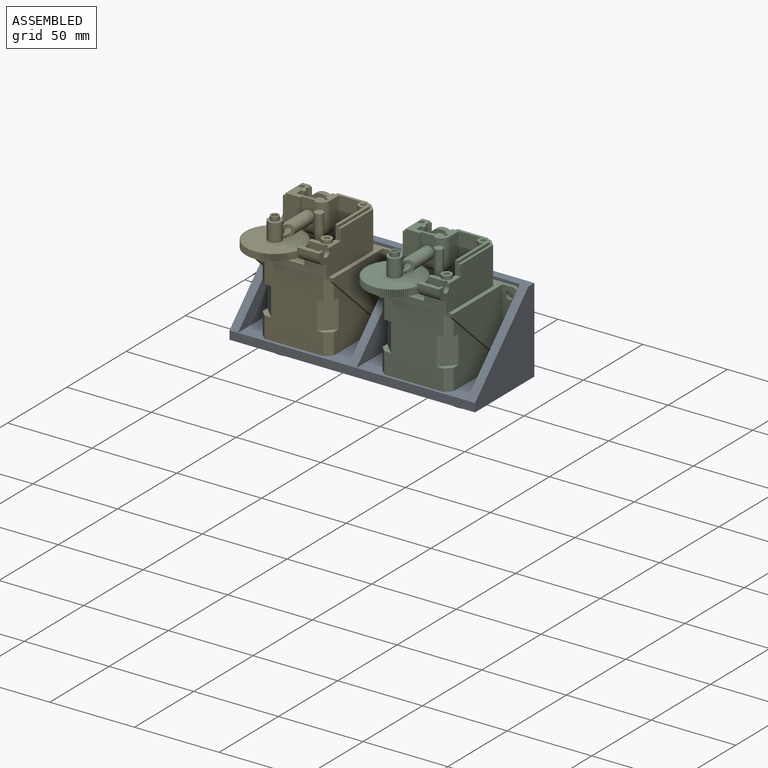
[diagram: assembled view]
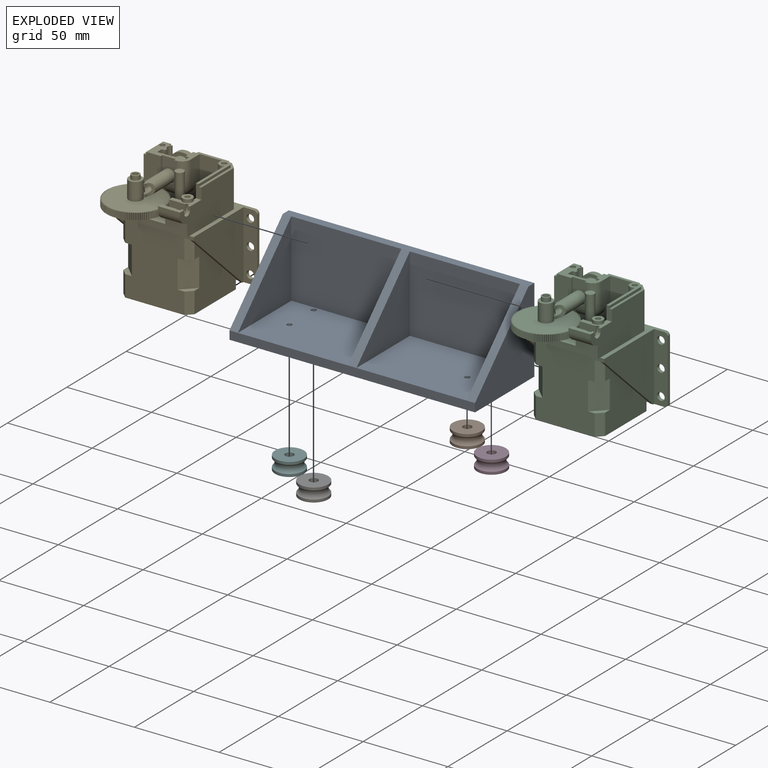
[diagram: exploded view]
GUIDED TOUR — MATED ASSEMBLY WITH SUBASSEMBLIES (Onshape document d7634deb3688b2f1b985ae3a, AutoMate assembly d7634deb3688b2f1b985ae3a_b9d960c2a4b070388d942541_c67b8e5b1b99cf756e7b9374_default)

This assembly has 17 component occurrences arranged in 7 top-level units: 5 individual components plus 2 subassemblies (S0, S1). The tour has two levels: first the top level, where each subassembly is treated as one rigid unit; then each subassembly is toured internally in its own section (nesting deeper than one subassembly level is flattened into its subassembly's section).

Components are labeled P0..P16 across the whole record; subassembly units are labeled S0..S1. A mate is a constraint between two units; its type names the relative motion it leaves free:
  CYLINDRICAL — leaves both rotation about and translation along the listed axis free,
  PARALLEL — keeps the two listed directions parallel,
  PLANAR — leaves sliding in the plane through the listed point (normal = the listed direction) and rotation about that normal free.
Axis/direction vectors are unit vectors and 'through' points are millimeter coordinates, both in the assembly's world frame.

TOP-LEVEL MATES (between units; each subassembly's internal mates are listed in its own section)
  1. CYLINDRICAL "Cylindrical 1": P1 <-> P0, axis (0.000, 0.000, 1.000) through (79.17, -160.97, 48.80) mm
  2. CYLINDRICAL "Cylindrical 4": P16 <-> P0, axis (0.000, 0.000, 1.000) through (-25.83, -140.51, 48.80) mm
  3. PLANAR "Planar 3": P1 <-> P0, direction (0.000, 0.000, 1.000) through (79.17, -160.97, 48.80) mm
  4. CYLINDRICAL "Cylindrical 3": P11 <-> P0, axis (0.000, 0.000, 1.000) through (-25.83, -160.97, 43.92) mm
  5. CYLINDRICAL "Cylindrical 2": P3 <-> P0, axis (0.000, 0.000, 1.000) through (79.17, -140.51, 48.80) mm
  6. PLANAR "Planar 2": P11 <-> P0, direction (0.000, 0.000, 1.000) through (-25.83, -160.97, 48.80) mm
  7. PLANAR "Planar 4": P0 <-> P3, direction (0.000, 0.000, -1.000) through (26.67, -158.09, 48.80) mm
  8. PLANAR "Planar 1": P16 <-> P0, direction (0.000, 0.000, 1.000) through (-25.83, -140.51, 48.80) mm

TOP-LEVEL ASSEMBLY ORDER
  1. P0 — the base component [order heuristic]
  2. P1 — core [order heuristic]
  3. P3 — core [order heuristic]
  4. P11 — core [order heuristic]
  5. P16 — core [order heuristic]
  6. S1 [order verified]
  7. S0 [order verified]
Order-tag legend:
  [order verified] — this step's position reverses a verified removal order: the component was checked to insert without passing through the ones already placed.
  [order heuristic] — the first 5 components form the assembly's core: parts whose collision-free extraction could not be verified, listed in mate-graph order.

Of the 17 component occurrences, 17 carry the full construction recipe — the FeatureScript program that regenerates the part's solid from scratch; the rest are supplied as boundary geometry only. Each toured unit is shown spotlighted twice — assembled, then exploded with a leader line back to its socket (green = recipe-attached component, orange = geometry-only, blue = subassembly unit; the rest desaturated gray).
NOTE — this tour is split across 4 documents so each fits a 32k-token context. This is document 1: the component sections continue in the remaining 3 documents, each repeating the header above.
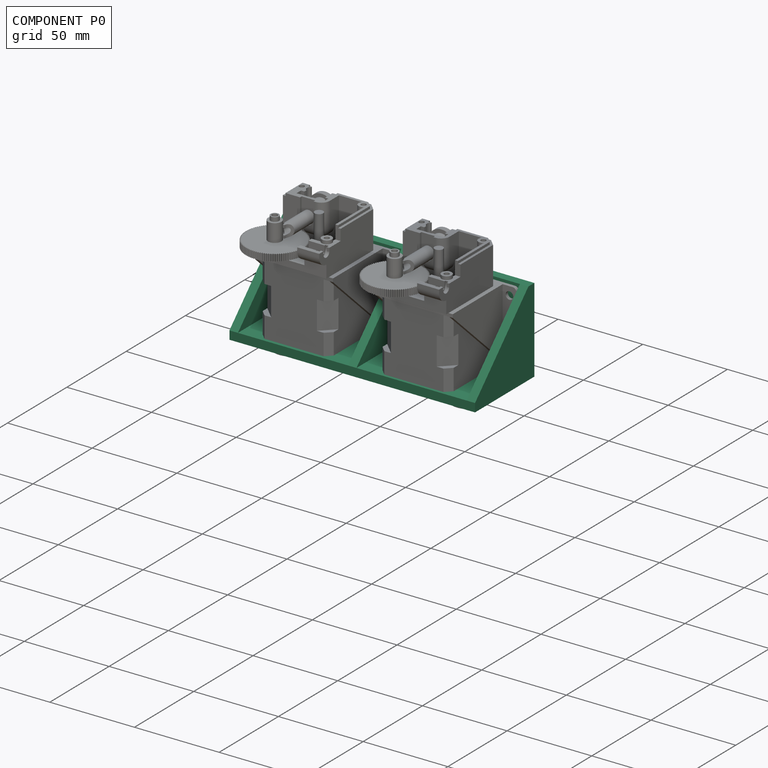
[diagram: component P0 — assembled]
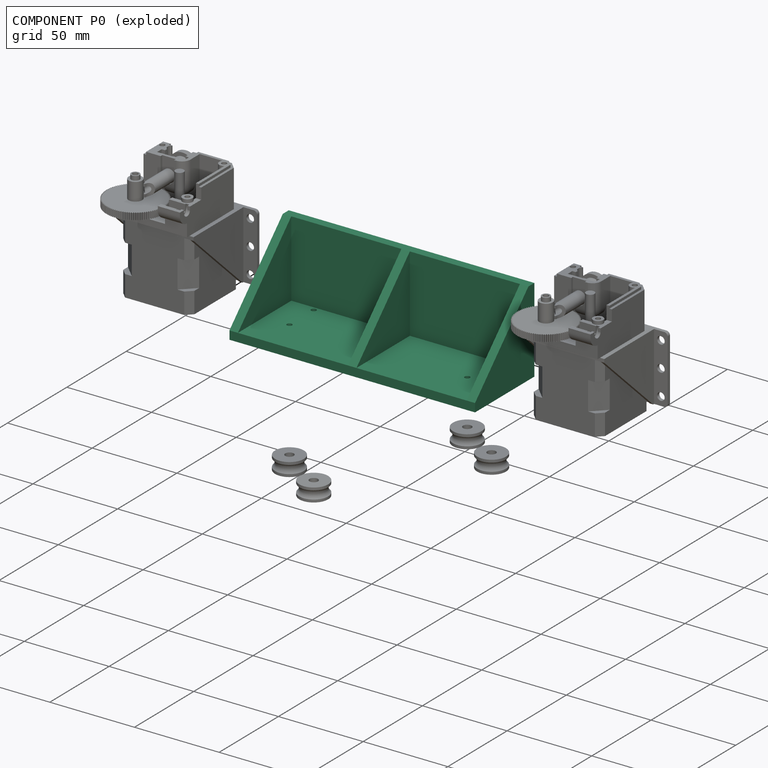
[diagram: component P0 — exploded]
COMPONENT P0 — recipe-attached (CADFS 00519379, mesh-verified: the recipe's output STEP matches this component's geometry to below the mesh-comparison resolution (tessellation chordal tolerance ~0.249 mm)).
Held by: CYLINDRICAL mate "Cylindrical 1" to P1; CYLINDRICAL mate "Cylindrical 4" to P16; PLANAR mate "Planar 3" to P1; CYLINDRICAL mate "Cylindrical 3" to P11; CYLINDRICAL mate "Cylindrical 2" to P3; PLANAR mate "Planar 2" to P11; PLANAR mate "Planar 4" to P3; PLANAR mate "Planar 1" to P16.
Construction recipe (FeatureScript — the CAD program that rebuilds this solid; sketch coordinates are in the units given by the * unit suffixes, e.g. mm):

FeatureScript 1511;
import(path : "onshape/std/geometry.fs", version : "1511.0");
import(path : "onshape/std/common.fs", version : "1511.0");
const mm = millimeter;
const VERTEX = EntityType.VERTEX;
const EDGE = EntityType.EDGE;
const FACE = EntityType.FACE;
const BODY = EntityType.BODY;
function v(x, y){return vector(x, y);}
function OD(order){return orderDisambiguation(order);}
function OSD(set){return originalSetDisambiguation(set);}
function TD(topology){return topologyDisambiguation(topology);}
function TDD(query){return trueDependencyDisambiguation(query);}
function sQuery(a, b, c) {return sketchEntityQuery(a, b, c);}

annotation { "Feature Type Name" : "Feature", "Feature Type Description" : "" }
export const myFeature = defineFeature(function(context is Context, id is Id, definition is map)
    precondition{}
    {
        {
            var Q0;
            Q0=qCreatedBy(makeId("Top.planeOp"),FACE);
            var sketch = newSketch(context, id + "F0", { "sketchPlane" : qUnion([Q0])});
            skLineSegment(sketch, "E0.bottom", {"start": v(0, 0) * mm, "end": v(145, 0) * mm});
            skLineSegment(sketch, "E0.top", {"start": v(0, 50) * mm, "end": v(145, 50) * mm});
            skLineSegment(sketch, "E0.left", {"start": v(0, 0) * mm, "end": v(0, 50) * mm});
            skLineSegment(sketch, "E0.right", {"start": v(145, 0) * mm, "end": v(145, 50) * mm});
            skSolve(sketch);
        }
        {
            var Q0;
            Q0=makeQuery(id+"F0.imprint","IMPRINT",FACE,{"disambiguationData":[TD([[makeQuery(id+"F0.imprint","IMPRINT",EDGE,{"derivedFrom":sQuery(id+"F0.wireOp",EDGE,"E0.bottom")}),1.0]])]});
            extrude(context, id + "F1", {"entities" : qUnion([Q0]), "depth" : 5 * mm, "offsetDistance" : 25 * mm});
        }
        {
            var Q0;
            Q0=makeQuery(id+"F1.opExtrude","CAP_FACE",FACE,{"disambiguationData":[OSD([sQuery(id+"F0.wireOp",EDGE,"E0.bottom"),sQuery(id+"F0.wireOp",EDGE,"E0.top"),sQuery(id+"F0.wireOp",EDGE,"E0.left"),sQuery(id+"F0.wireOp",EDGE,"E0.right")])],"isStart":false});
            var sketch = newSketch(context, id + "F2", { "sketchPlane" : qUnion([Q0])});
            skCircle(sketch, "E1", {"center": v(20, 42.5) * mm, "radius": 2.5 * mm});
            skCircle(sketch, "E2", {"center": v(20, 22.04) * mm, "radius": 2.5 * mm});
            skCircle(sketch, "E3", {"center": v(125, 42.5) * mm, "radius": 2.5 * mm});
            skCircle(sketch, "E4", {"center": v(125, 22.04) * mm, "radius": 2.5 * mm});
            skCircle(sketch, "E5", {"center": v(20, 42.5) * mm, "radius": 1.5 * mm});
            skCircle(sketch, "E6", {"center": v(20, 22.04) * mm, "radius": 1.5 * mm});
            skCircle(sketch, "E7", {"center": v(125, 42.5) * mm, "radius": 1.5 * mm});
            skCircle(sketch, "E8", {"center": v(125, 22.04) * mm, "radius": 1.5 * mm});
            skSolve(sketch);
        }
        {
            var Q0;
            Q0 = qSketchRegion(id + "F2", true);
            extrude(context, id + "F3", {"entities" : qUnion([Q0]), "operationType" : NewBodyOperationType.ADD, "depth" : 9.75 * mm, "offsetDistance" : 25 * mm});
        }
        {
            var Q0;
            {var subQ0=sQuery(id+"F0.wireOp",EDGE,"E0.left");var subQ1=sQuery(id+"F0.wireOp",EDGE,"E0.top");var subQ2=sQuery(id+"F0.wireOp",EDGE,"E0.right");var subQ3=sQuery(id+"F0.wireOp",EDGE,"E0.bottom");Q0=makeQuery(id+"F3.boolean.opBoolean","SPLIT",FACE,{"disambiguationData":[TD([makeQuery(id+"F1.opExtrude","SWEPT_FACE",FACE,{"disambiguationData":[OSD([subQ3])]})])],"derivedFrom":makeQuery(id+"F1.opExtrude","CAP_FACE",FACE,{"disambiguationData":[OSD([subQ3,subQ1,subQ0,subQ2])],"isStart":false})});}
            var sketch = newSketch(context, id + "F4", { "sketchPlane" : qUnion([Q0])});
            skCircle(sketch, "E9", {"center": v(20, 42.5) * mm, "radius": 1.5 * mm});
            skCircle(sketch, "E10", {"center": v(20, 22.04) * mm, "radius": 1.5 * mm});
            skCircle(sketch, "E11", {"center": v(125, 42.5) * mm, "radius": 1.5 * mm});
            skCircle(sketch, "E12", {"center": v(125, 22.04) * mm, "radius": 1.5 * mm});
            skSolve(sketch);
        }
        {
            var Q0;
            Q0 = qSketchRegion(id + "F4", true);
            extrude(context, id + "F5", {"entities" : qUnion([Q0]), "operationType" : NewBodyOperationType.REMOVE, "oppositeDirection" : true, "depth" : 25 * mm, "offsetDistance" : 25 * mm});
        }
        {
            var Q0;
            Q0=makeQuery(id+"F1.opExtrude","SWEPT_FACE",FACE,{"disambiguationData":[OSD([sQuery(id+"F0.wireOp",EDGE,"E0.right")])]});
            var sketch = newSketch(context, id + "F6", { "sketchPlane" : qUnion([Q0])});
            skLineSegment(sketch, "E13", {"start": v(50, 0) * mm, "end": v(50, -45) * mm});
            skLineSegment(sketch, "E14", {"start": v(50, -45) * mm, "end": v(45, -45) * mm});
            skLineSegment(sketch, "E15", {"start": v(45, -45) * mm, "end": v(45, 0) * mm});
            skLineSegment(sketch, "E16", {"start": v(45, 0) * mm, "end": v(50, 0) * mm});
            skSolve(sketch);
        }
        {
            var Q0;
            Q0=makeQuery(id+"F6.imprint","IMPRINT",FACE,{"disambiguationData":[TD([[makeQuery(id+"F6.imprint","IMPRINT",EDGE,{"derivedFrom":sQuery(id+"F6.wireOp",EDGE,"E13")}),-1.0]])]});
            var Q1;
            Q1=makeQuery(id+"F1.opExtrude","SWEPT_FACE",FACE,{"disambiguationData":[OSD([sQuery(id+"F0.wireOp",EDGE,"E0.left")])]});
            extrude(context, id + "F7", {"entities" : qUnion([Q0]), "operationType" : NewBodyOperationType.ADD, "endBound" : BoundingType.UP_TO_SURFACE, "oppositeDirection" : true, "depth" : 25 * mm, "endBoundEntityFace" : qUnion([Q1]), "offsetDistance" : 25 * mm});
        }
        {
            var Q0;
            {var subQ0=sQuery(id+"F0.wireOp",EDGE,"E0.left");Q0=makeQuery(id+"F7.boolean.opBoolean","MERGE",FACE,{"derivedFrom":[makeQuery(id+"F1.opExtrude","SWEPT_FACE",FACE,{"disambiguationData":[OSD([subQ0])]}),makeQuery(id+"F7.opExtrude","CAP_FACE",FACE,{"disambiguationData":[OSD([subQ0])],"isStart":false})]});}
            var sketch = newSketch(context, id + "F8", { "sketchPlane" : qUnion([Q0])});
            skLineSegment(sketch, "E17", {"start": v(-45, -45) * mm, "end": v(-45, 0) * mm});
            skLineSegment(sketch, "E18", {"start": v(-45, 0) * mm, "end": v(0, 0) * mm});
            skLineSegment(sketch, "E19", {"start": v(0, 0) * mm, "end": v(-45, -45) * mm});
            skSolve(sketch);
        }
        {
            var Q0;
            Q0=makeQuery(id+"F8.imprint","IMPRINT",FACE,{"disambiguationData":[TD([[makeQuery(id+"F8.imprint","IMPRINT",EDGE,{"derivedFrom":sQuery(id+"F8.wireOp",EDGE,"E17")}),-1.0]])]});
            extrude(context, id + "F9", {"entities" : qUnion([Q0]), "operationType" : NewBodyOperationType.ADD, "oppositeDirection" : true, "depth" : 5 * mm, "offsetDistance" : 25 * mm});
        }
        {
            var Q0;
            Q0 = qSketchRegion(id + "F8", true);
            extrude(context, id + "F10", {"entities" : qUnion([Q0]), "operationType" : NewBodyOperationType.ADD, "oppositeDirection" : true, "depth" : 75 * mm, "offsetDistance" : 25 * mm, "hasSecondDirection" : true, "secondDirectionOppositeDirection" : true, "secondDirectionDepth" : 70 * mm});
        }
        {
            var Q0;
            Q0 = qSketchRegion(id + "F8", true);
            extrude(context, id + "F11", {"entities" : qUnion([Q0]), "operationType" : NewBodyOperationType.ADD, "oppositeDirection" : true, "depth" : 145 * mm, "offsetDistance" : 25 * mm, "hasSecondDirection" : true, "secondDirectionOppositeDirection" : true, "secondDirectionDepth" : 140 * mm});
        }
        {
            var Q0;
            Q0=makeQuery(id+"F7.boolean.opBoolean","MERGE",FACE,{"derivedFrom":[makeQuery(id+"F1.opExtrude","SWEPT_FACE",FACE,{"disambiguationData":[OSD([sQuery(id+"F0.wireOp",EDGE,"E0.top")])]}),makeQuery(id+"F7.opExtrude","SWEPT_FACE",FACE,{"disambiguationData":[OSD([sQuery(id+"F6.wireOp",EDGE,"E13")])]})]});
            var sketch = newSketch(context, id + "F12", { "sketchPlane" : qUnion([Q0])});
            skCircle(sketch, "E20", {"center": v(-102.5, -5) * mm, "radius": 2.5 * mm});
            skCircle(sketch, "E21", {"center": v(-102.5, -5) * mm, "radius": 1.5 * mm});
            skCircle(sketch, "E22", {"center": v(-102.5, -25.46) * mm, "radius": 2.5 * mm});
            skCircle(sketch, "E23", {"center": v(-102.5, -25.46) * mm, "radius": 1.5 * mm});
            skCircle(sketch, "E24", {"center": v(-42.5, -5) * mm, "radius": 2.5 * mm});
            skCircle(sketch, "E25", {"center": v(-42.5, -5) * mm, "radius": 1.5 * mm});
            skCircle(sketch, "E26", {"center": v(-42.5, -25.46) * mm, "radius": 1.5 * mm});
            skCircle(sketch, "E27", {"center": v(-42.5, -25.46) * mm, "radius": 2.5 * mm});
            skSolve(sketch);
        }
        {
            var Q0;
            Q0 = qSketchRegion(id + "F12", true);
            extrude(context, id + "F13", {"entities" : qUnion([Q0]), "operationType" : NewBodyOperationType.ADD, "depth" : 5 * mm, "offsetDistance" : 25 * mm});
        }
    });
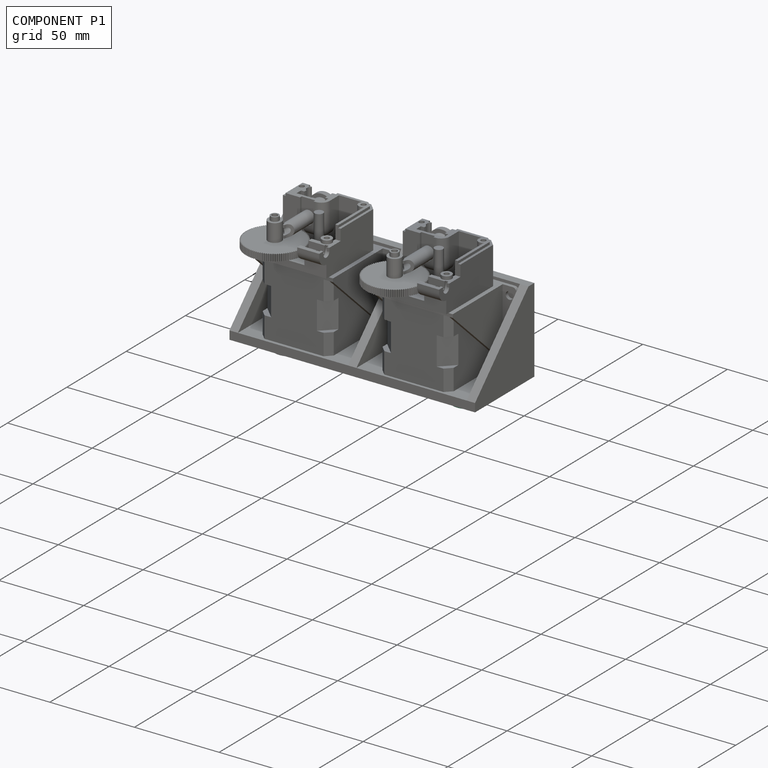
[diagram: component P1 — assembled]
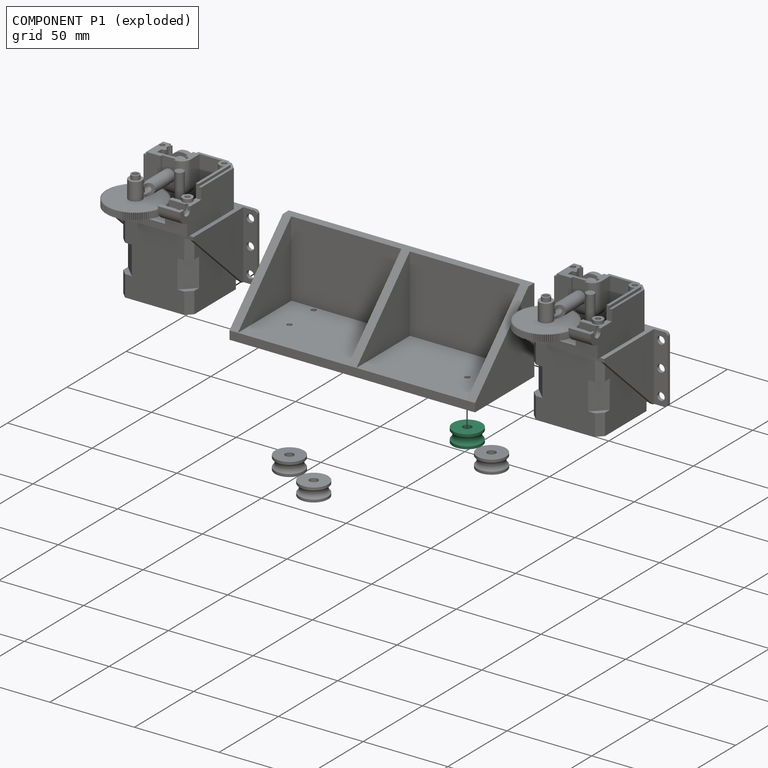
[diagram: component P1 — exploded]
COMPONENT P1 — recipe-attached (CADFS 00519377, mesh-verified: the recipe's output STEP matches this component's geometry to below the mesh-comparison resolution (tessellation chordal tolerance ~0.0389 mm)).
Held by: CYLINDRICAL mate "Cylindrical 1" to P0; PLANAR mate "Planar 3" to P0.
Construction recipe (FeatureScript — the CAD program that rebuilds this solid; sketch coordinates are in the units given by the * unit suffixes, e.g. mm):

FeatureScript 1511;
import(path : "onshape/std/geometry.fs", version : "1511.0");
import(path : "onshape/std/common.fs", version : "1511.0");
const mm = millimeter;
const VERTEX = EntityType.VERTEX;
const EDGE = EntityType.EDGE;
const FACE = EntityType.FACE;
const BODY = EntityType.BODY;
function v(x, y){return vector(x, y);}
function OD(order){return orderDisambiguation(order);}
function OSD(set){return originalSetDisambiguation(set);}
function TD(topology){return topologyDisambiguation(topology);}
function TDD(query){return trueDependencyDisambiguation(query);}
function sQuery(a, b, c) {return sketchEntityQuery(a, b, c);}

annotation { "Feature Type Name" : "Feature", "Feature Type Description" : "" }
export const myFeature = defineFeature(function(context is Context, id is Id, definition is map)
    precondition{}
    {
        {
            var Q0;
            Q0=qCreatedBy(makeId("Top.planeOp"),FACE);
            var sketch = newSketch(context, id + "F0", { "sketchPlane" : qUnion([Q0])});
            skLineSegment(sketch, "E0", {"start": v(0, 0) * mm, "end": v(0, 6) * mm});
            skLineSegment(sketch, "E1", {"start": v(0, 6) * mm, "end": v(9.75, 6) * mm});
            skLineSegment(sketch, "E2", {"start": v(9.75, 6) * mm, "end": v(9.75, 4.2) * mm});
            skLineSegment(sketch, "E3", {"start": v(9.75, 4.2) * mm, "end": v(8, 4.2) * mm});
            skLineSegment(sketch, "E4", {"start": v(8, 4.2) * mm, "end": v(8, 0) * mm});
            skArc(sketch, "E5", {"start": v(6.45, 0) * mm, "mid": v(4, 1.27) * mm, "end": v(1.55, 0) * mm});
            skLineSegment(sketch, "E6", {"start": v(0, 0) * mm, "end": v(1.55, 0) * mm});
            skLineSegment(sketch, "E7", {"start": v(8, 0) * mm, "end": v(6.45, 0) * mm});
            skSolve(sketch);
        }
        {
            var Q0;
            Q0=qCreatedBy(makeId("Top.planeOp"),FACE);
            var sketch = newSketch(context, id + "F1", { "sketchPlane" : qUnion([Q0])});
            skLineSegment(sketch, "E8", {"start": v(1.6, 8.5) * mm, "end": v(19.32, 8.5) * mm, "construction": true});
            skSolve(sketch);
        }
        {
            var Q0;
            Q0 = qSketchRegion(id + "F0", true);
            var Q1;
            Q1=sQuery(id+"F1.wireOp",EDGE,"E8");
            revolve(context, id + "F2", {"entities" : qUnion([Q0]), "axis" : qUnion([Q1]), "revolveType" : RevolveType.FULL});
        }
    });
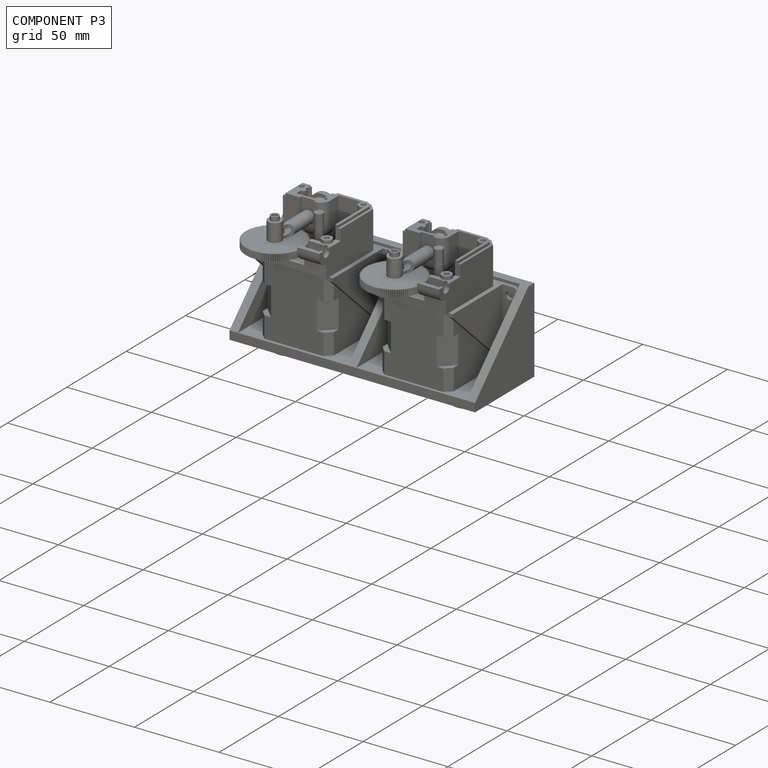
[diagram: component P3 — assembled]
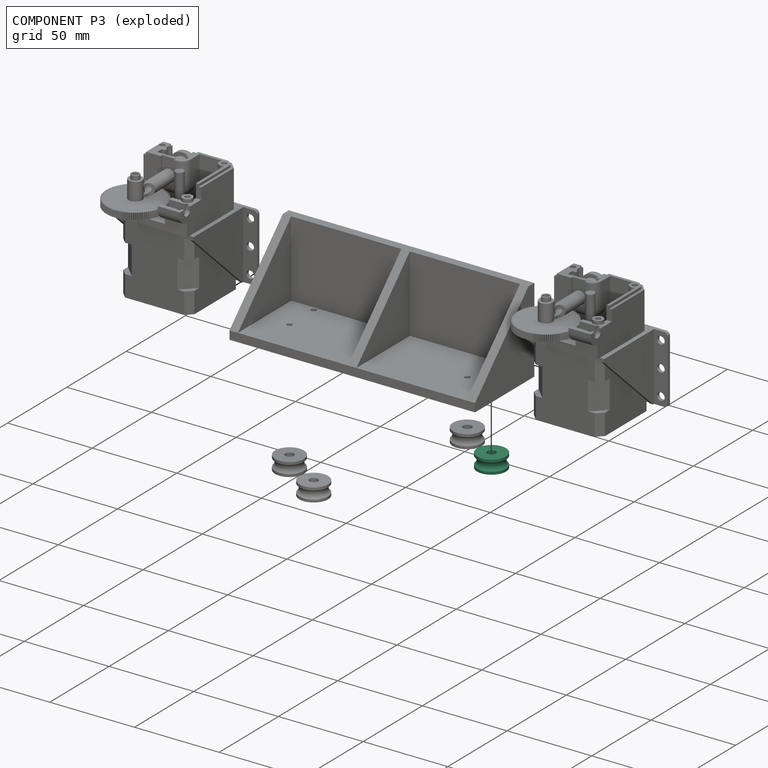
[diagram: component P3 — exploded]
COMPONENT P3 — same part as P1 (CADFS 00519377); its construction recipe is shown at P1.
Held by: CYLINDRICAL mate "Cylindrical 2" to P0; PLANAR mate "Planar 4" to P0.
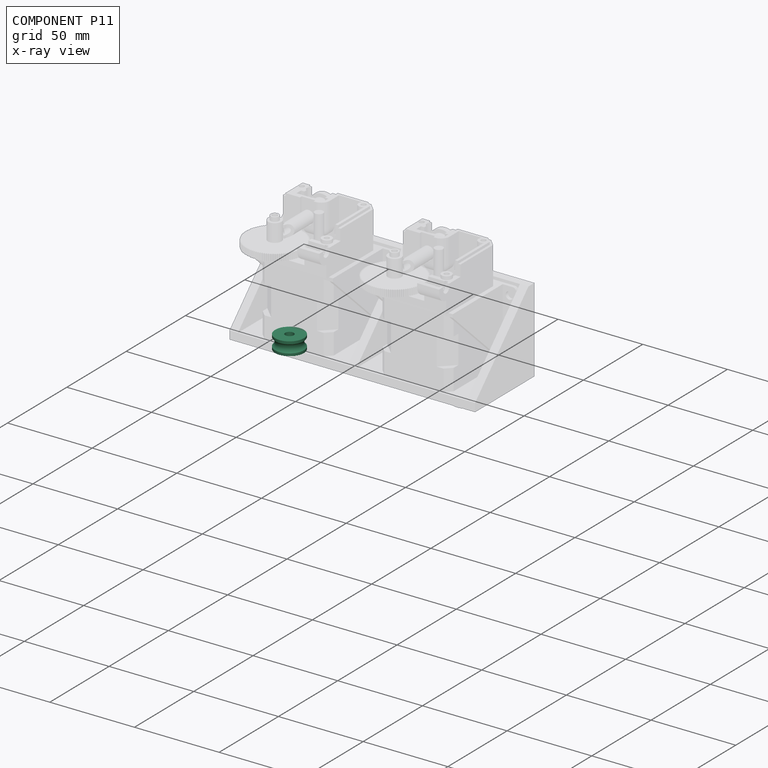
[diagram: component P11 — x-ray view]
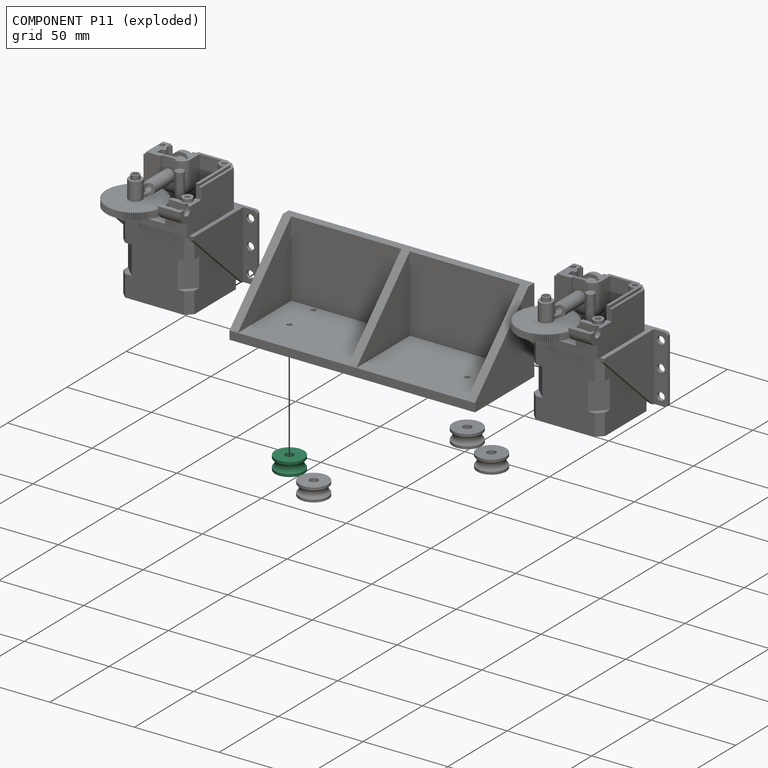
[diagram: component P11 — exploded]
COMPONENT P11 — same part as P1 (CADFS 00519377); its construction recipe is shown at P1.
Held by: CYLINDRICAL mate "Cylindrical 3" to P0; PLANAR mate "Planar 2" to P0.
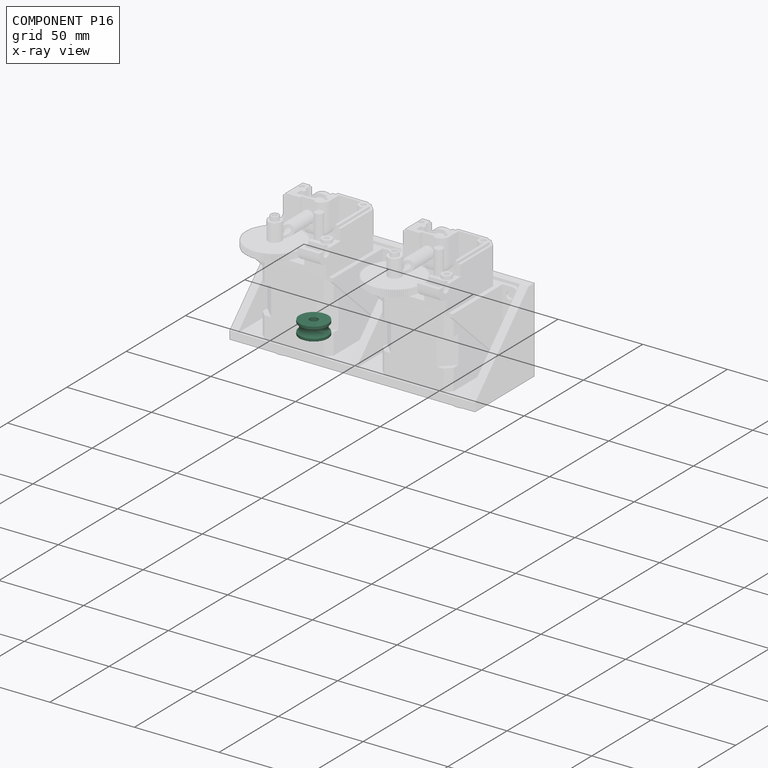
[diagram: component P16 — x-ray view]
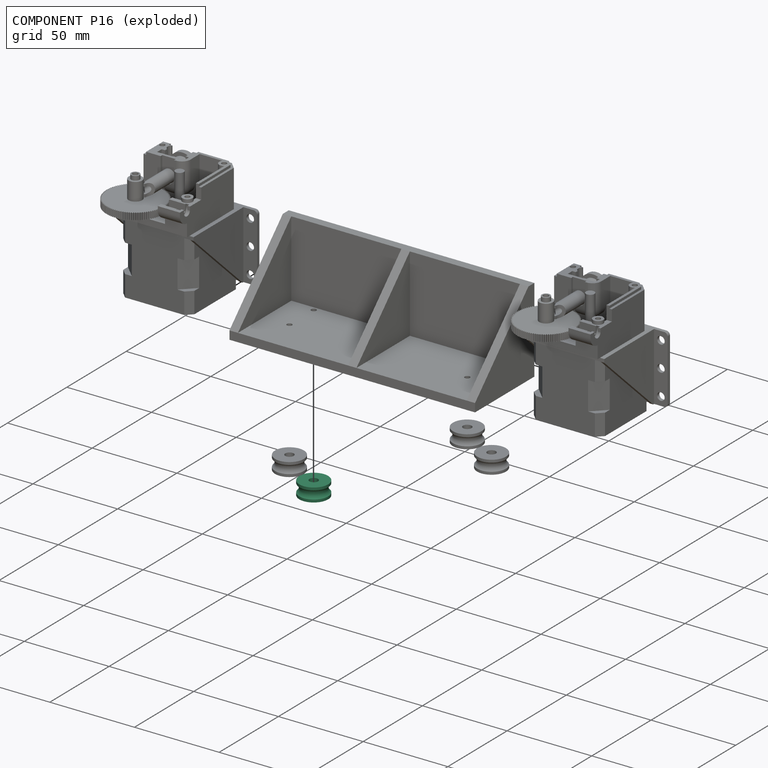
[diagram: component P16 — exploded]
COMPONENT P16 — same part as P1 (CADFS 00519377); its construction recipe is shown at P1.
Held by: CYLINDRICAL mate "Cylindrical 4" to P0; PLANAR mate "Planar 1" to P0.
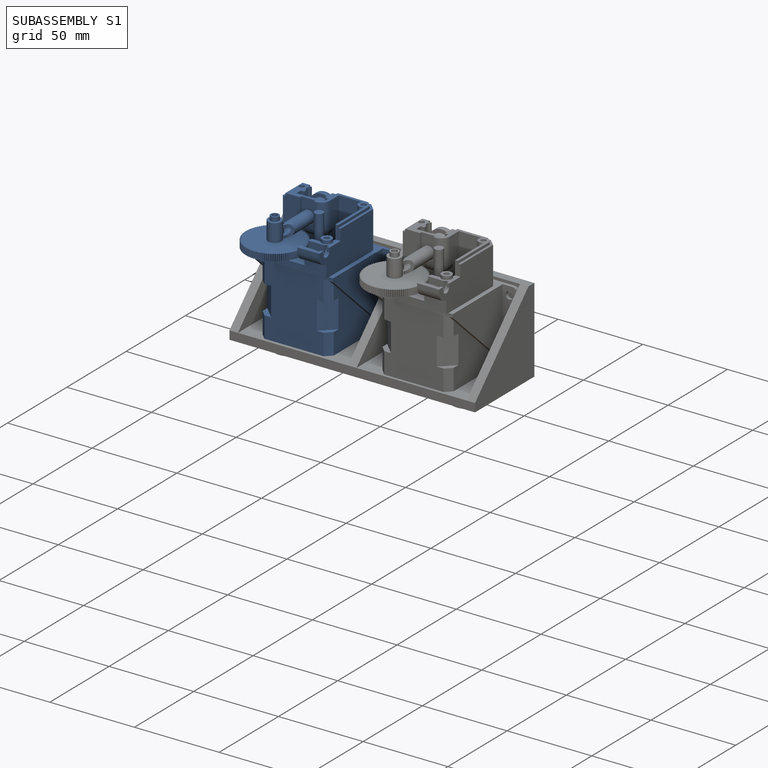
[diagram: subassembly S1 — assembled]
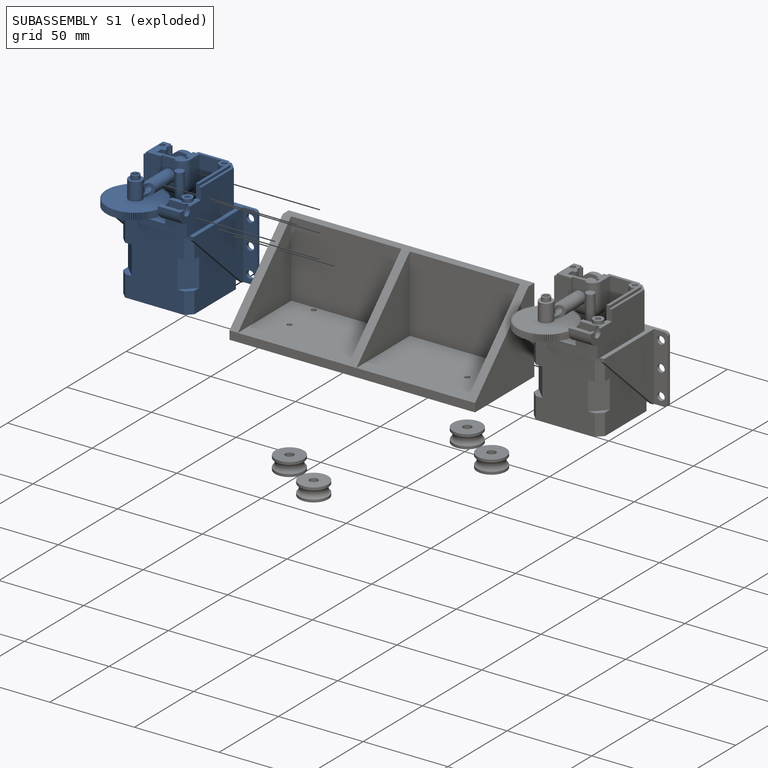
[diagram: subassembly S1 — exploded]
SUBASSEMBLY S1 — 6 components (P4, P5, P6, P7, P8, P12), of which 6 recipe-attached; toured below.
Held by: no mates (free).
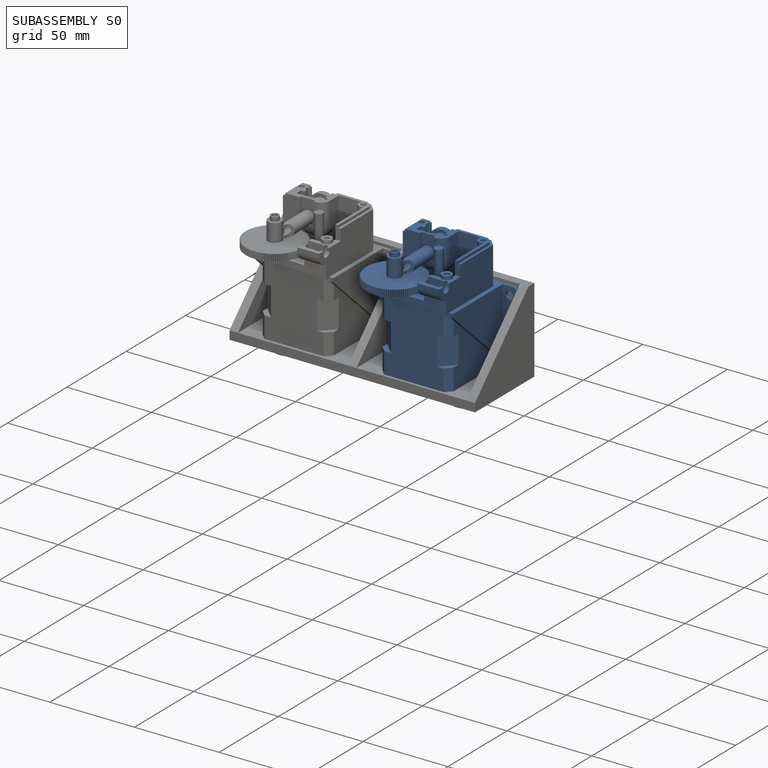
[diagram: subassembly S0 — assembled]
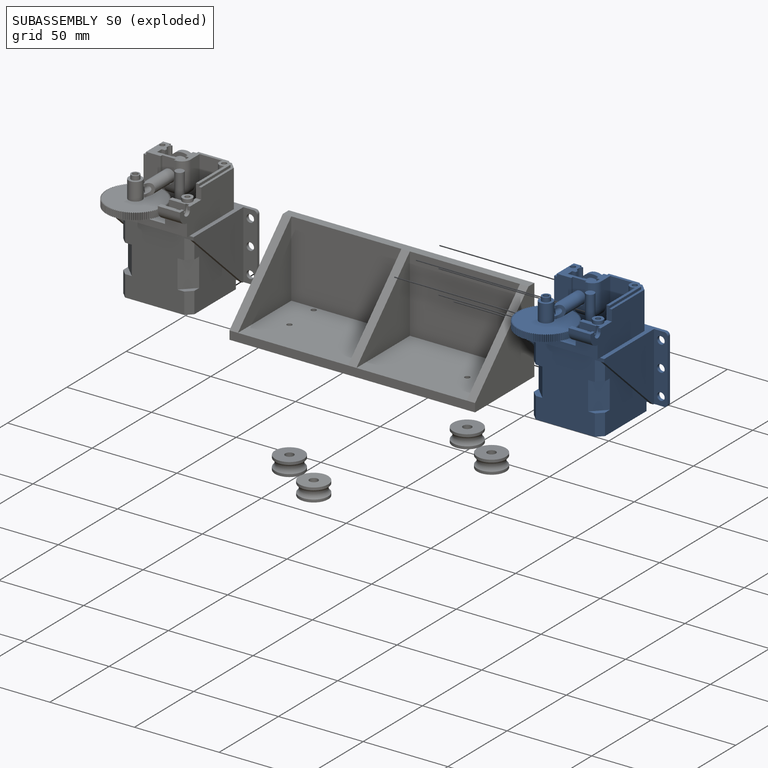
[diagram: subassembly S0 — exploded]
SUBASSEMBLY S0 — 6 components (P2, P9, P10, P13, P14, P15), of which 6 recipe-attached; toured below.
Held by: no mates (free).
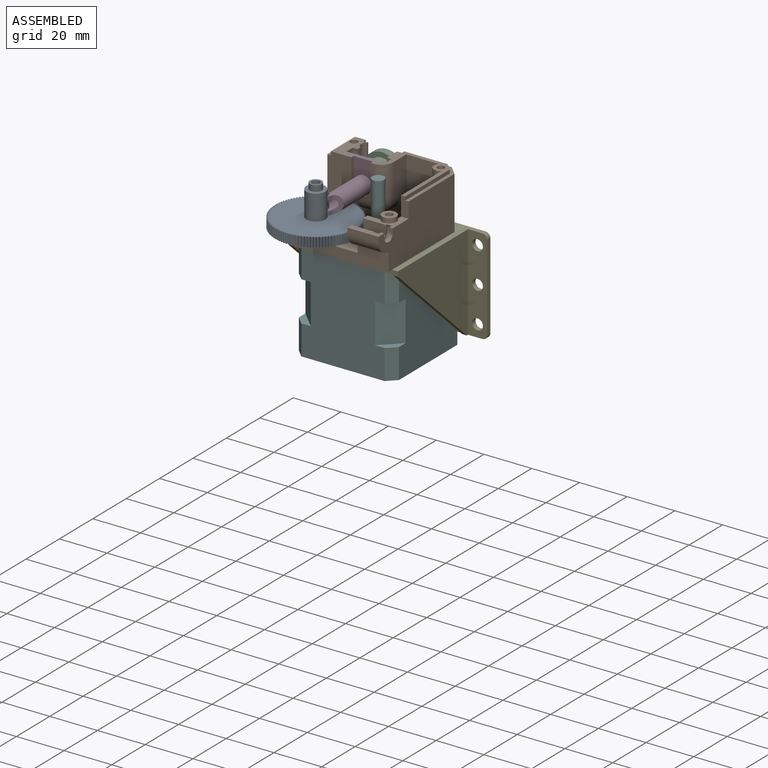
[diagram: subassembly S0 — assembled view]
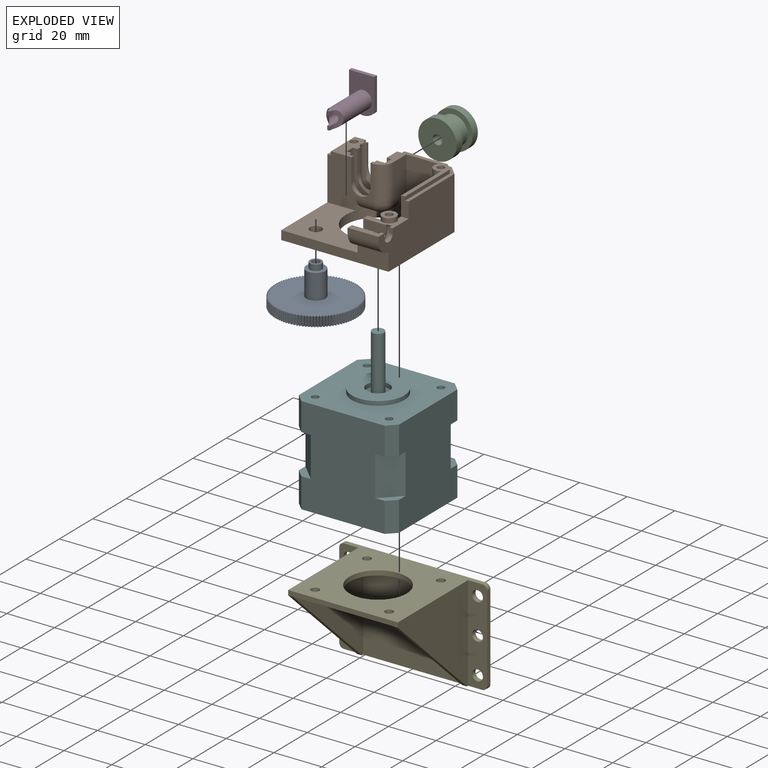
[diagram: subassembly S0 — exploded view]
SUBASSEMBLY S0 TOUR — 6 components, shown here in isolation at its own camera.

INTERNAL MATES
  1. CYLINDRICAL "Cylindrical 2": P2 <-> P9, axis (0.000, 0.000, 1.000) through (47.13, -176.53, 100.88) mm
  2. PLANAR "Planar 2": P14 <-> P9, direction (0.000, 0.000, 1.000) through (62.38, -159.40, 97.13) mm
  3. PLANAR "Planar 2": P2 <-> P9, direction (0.000, 0.000, -1.000) through (47.13, -176.53, 100.88) mm
  4. PARALLEL "Parallel 1": P13 <-> P2, direction (0.000, 0.000, -1.000) through (51.48, -175.93, 108.05) mm
  5. CYLINDRICAL "Cylindrical 1": P15 <-> P14, axis (0.000, 0.000, 1.000) through (62.38, -161.03, 95.13) mm
  6. PARALLEL "Parallel 5": P14 <-> P15, direction (0.000, 0.000, -1.000) through (62.38, -161.03, 95.13) mm
  7. CYLINDRICAL "Cylindrical 3": P13 <-> P9, axis (0.000, -1.000, 0.000) through (51.98, -154.23, 110.83) mm
  8. PLANAR "Planar 1": P14 <-> P15, direction (0.000, 0.000, -1.000) through (41.38, -161.03, 95.13) mm
  9. PLANAR "Planar 1": P10 <-> P9, direction (0.000, -1.000, 0.000) through (51.98, -153.53, 110.83) mm
  10. PARALLEL "Parallel 2": P15 <-> P14, direction (0.000, 0.000, 1.000) through (62.38, -161.03, 95.13) mm
  11. CYLINDRICAL "Cylindrical 2": P9 <-> P14, axis (0.000, 0.000, -1.000) through (62.38, -161.03, 101.53) mm
  12. PARALLEL "Parallel 1": P14 <-> P15, direction (0.000, -1.000, 0.000) through (62.38, -140.03, 76.13) mm
  13. CYLINDRICAL "Cylindrical 1": P9 <-> P10, axis (0.000, 1.000, 0.000) through (51.98, -142.03, 110.83) mm
  14. PARALLEL "Parallel 3": P9 <-> P14, direction (0.000, 1.000, 0.000) through (60.67, -140.53, 106.86) mm
  15. PLANAR "Planar 3": P9 <-> P13, direction (0.000, 1.000, 0.000) through (50.26, -155.03, 111.37) mm
  16. PARALLEL "Parallel 1": P13 <-> P2, direction (0.000, 0.000, -1.000) through (51.48, -175.93, 108.05) mm
  17. PARALLEL "Parallel 5": P14 <-> P15, direction (0.000, 0.000, -1.000) through (62.38, -161.03, 95.13) mm
  18. PARALLEL "Parallel 1": P14 <-> P15, direction (0.000, -1.000, 0.000) through (62.38, -140.03, 76.13) mm
  19. PARALLEL "Parallel 3": P9 <-> P14, direction (0.000, 1.000, 0.000) through (60.67, -140.53, 106.86) mm
  20. CYLINDRICAL "Cylindrical 3": P13 <-> P9, axis (0.000, -1.000, 0.000) through (51.98, -154.23, 110.83) mm
  21. PLANAR "Planar 2": P2 <-> P9, direction (0.000, 0.000, -1.000) through (47.13, -176.53, 100.88) mm
  22. CYLINDRICAL "Cylindrical 2": P9 <-> P14, axis (0.000, 0.000, -1.000) through (62.38, -161.03, 101.53) mm
  23. PLANAR "Planar 2": P14 <-> P9, direction (0.000, 0.000, 1.000) through (62.38, -159.40, 97.13) mm
  24. CYLINDRICAL "Cylindrical 2": P2 <-> P9, axis (0.000, 0.000, 1.000) through (47.13, -176.53, 100.88) mm
  25. PLANAR "Planar 3": P9 <-> P13, direction (0.000, 1.000, 0.000) through (50.26, -155.03, 111.37) mm
  26. CYLINDRICAL "Cylindrical 1": P9 <-> P10, axis (0.000, 1.000, 0.000) through (51.98, -142.03, 110.83) mm
  27. PLANAR "Planar 1": P14 <-> P15, direction (0.000, 0.000, -1.000) through (41.38, -161.03, 95.13) mm
  28. CYLINDRICAL "Cylindrical 1": P15 <-> P14, axis (0.000, 0.000, 1.000) through (62.38, -161.03, 95.13) mm
  29. PARALLEL "Parallel 2": P15 <-> P14, direction (0.000, 0.000, 1.000) through (62.38, -161.03, 95.13) mm
  30. PLANAR "Planar 1": P10 <-> P9, direction (0.000, -1.000, 0.000) through (51.98, -153.53, 110.83) mm

ASSEMBLY ORDER (within the subassembly)
  1. P9 — the base component [order heuristic]
  2. P2 — core [order heuristic]
  3. P10 — core [order heuristic]
  4. P13 [order verified]
  5. P15 [order verified]
  6. P14 [order verified]
Order-tag legend:
  [order verified] — this step's position reverses a verified removal order: the component was checked to insert without passing through the ones already placed.
  [order heuristic] — the first 3 components form the assembly's core: parts whose collision-free extraction could not be verified, listed in mate-graph order.
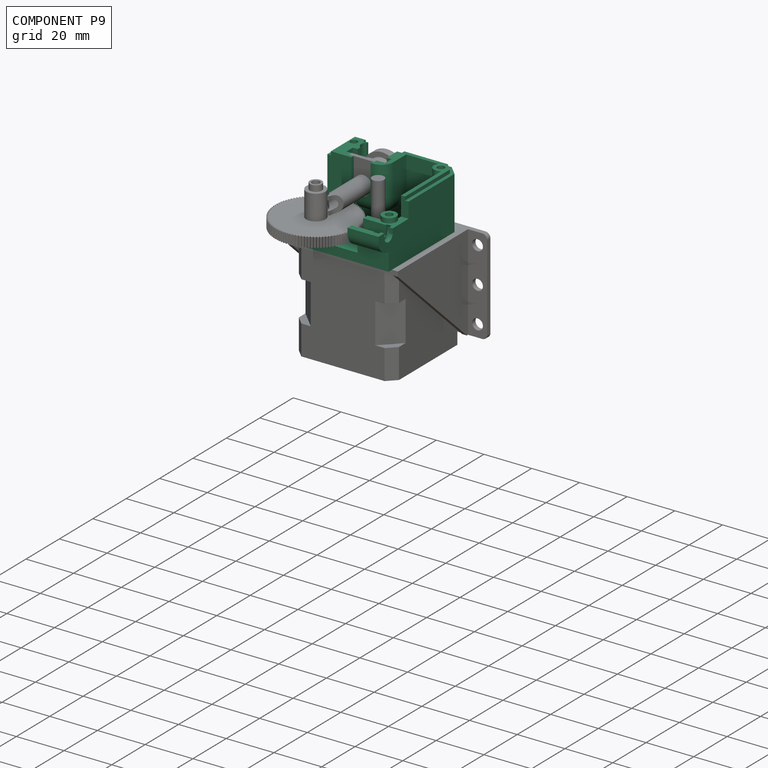
[diagram: component P9 — assembled]
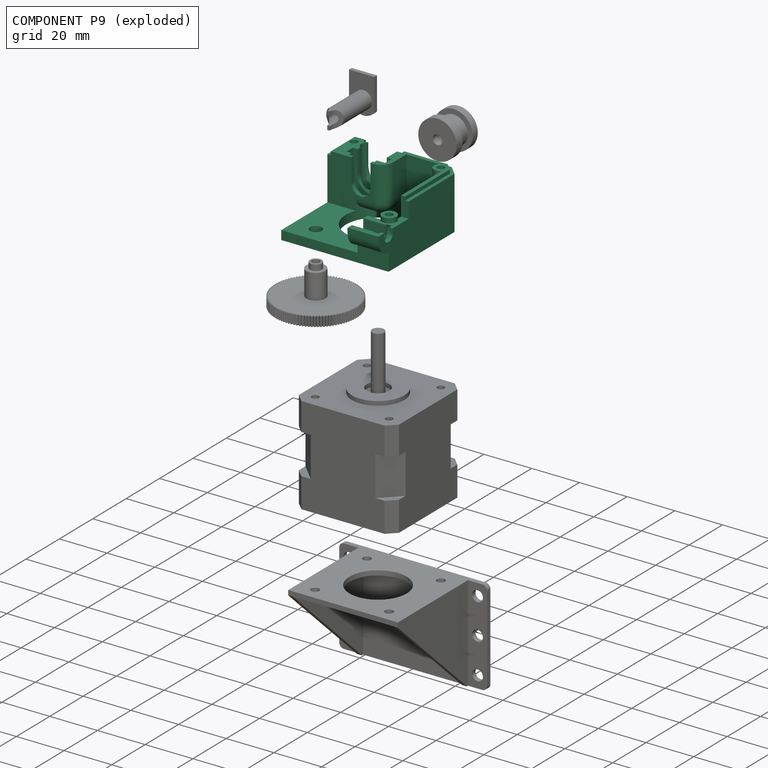
[diagram: component P9 — exploded]
COMPONENT P9 — recipe-attached (CADFS 00519380, mesh-verified: the recipe's output STEP matches this component's geometry to below the mesh-comparison resolution (tessellation chordal tolerance ~0.106 mm)).
Held by: CYLINDRICAL mate "Cylindrical 2" to P2; PLANAR mate "Planar 2" to P14; PLANAR mate "Planar 2" to P2; CYLINDRICAL mate "Cylindrical 3" to P13; PLANAR mate "Planar 1" to P10; CYLINDRICAL mate "Cylindrical 2" to P14; CYLINDRICAL mate "Cylindrical 1" to P10; PARALLEL mate "Parallel 3" to P14; PLANAR mate "Planar 3" to P13; PARALLEL mate "Parallel 3" to P14; CYLINDRICAL mate "Cylindrical 3" to P13; PLANAR mate "Planar 2" to P2; CYLINDRICAL mate "Cylindrical 2" to P14; PLANAR mate "Planar 2" to P14; CYLINDRICAL mate "Cylindrical 2" to P2; PLANAR mate "Planar 3" to P13; CYLINDRICAL mate "Cylindrical 1" to P10; PLANAR mate "Planar 1" to P10.
Construction recipe (FeatureScript — the CAD program that rebuilds this solid; sketch coordinates are in the units given by the * unit suffixes, e.g. mm):

FeatureScript 1511;
import(path : "onshape/std/geometry.fs", version : "1511.0");
import(path : "onshape/std/common.fs", version : "1511.0");
const mm = millimeter;
const VERTEX = EntityType.VERTEX;
const EDGE = EntityType.EDGE;
const FACE = EntityType.FACE;
const BODY = EntityType.BODY;
function v(x, y){return vector(x, y);}
function OD(order){return orderDisambiguation(order);}
function OSD(set){return originalSetDisambiguation(set);}
function TD(topology){return topologyDisambiguation(topology);}
function TDD(query){return trueDependencyDisambiguation(query);}
function sQuery(a, b, c) {return sketchEntityQuery(a, b, c);}

annotation { "Feature Type Name" : "Feature", "Feature Type Description" : "" }
export const myFeature = defineFeature(function(context is Context, id is Id, definition is map)
    precondition{}
    {
        {
            var Q0;
            Q0=qCreatedBy(makeId("Top.planeOp"),FACE);
            var sketch = newSketch(context, id + "F0", { "sketchPlane" : qUnion([Q0])});
            skLineSegment(sketch, "E0.bottom", {"start": v(0, 0) * mm, "end": v(45, 0) * mm});
            skLineSegment(sketch, "E0.top", {"start": v(0, 43.5) * mm, "end": v(45, 43.5) * mm});
            skLineSegment(sketch, "E0.left", {"start": v(0, 0) * mm, "end": v(0, 43.5) * mm});
            skLineSegment(sketch, "E0.right", {"start": v(45, 0) * mm, "end": v(45, 43.5) * mm});
            skCircle(sketch, "E1", {"center": v(35.75, 36) * mm, "radius": 2.5 * mm});
            skCircle(sketch, "E2", {"center": v(5, 36) * mm, "radius": 1.5 * mm});
            skCircle(sketch, "E3", {"center": v(5, 5) * mm, "radius": 1.5 * mm});
            skCircle(sketch, "E4", {"center": v(35.5, 5) * mm, "radius": 1.5 * mm});
            skCircle(sketch, "E5", {"center": v(41.5, 5) * mm, "radius": 1.5 * mm});
            skCircle(sketch, "E6", {"center": v(20.5, 20.5) * mm, "radius": 13.5 * mm});
            skSolve(sketch);
        }
        {
            var Q0;
            Q0=makeQuery(id+"F0.imprint","IMPRINT",FACE,{"disambiguationData":[TD([[makeQuery(id+"F0.imprint","IMPRINT",EDGE,{"derivedFrom":sQuery(id+"F0.wireOp",EDGE,"E0.bottom")}),1.0]])]});
            extrude(context, id + "F1", {"entities" : qUnion([Q0]), "depth" : 3.75 * mm, "offsetDistance" : 25 * mm});
        }
        {
            var Q0;
            Q0=makeQuery(id+"F1.opExtrude","CAP_FACE",FACE,{"disambiguationData":[OSD([sQuery(id+"F0.wireOp",EDGE,"E0.bottom"),sQuery(id+"F0.wireOp",EDGE,"E0.top"),sQuery(id+"F0.wireOp",EDGE,"E0.left"),sQuery(id+"F0.wireOp",EDGE,"E0.right"),sQuery(id+"F0.wireOp",EDGE,"E1"),sQuery(id+"F0.wireOp",EDGE,"E2"),sQuery(id+"F0.wireOp",EDGE,"E3"),sQuery(id+"F0.wireOp",EDGE,"E4"),sQuery(id+"F0.wireOp",EDGE,"E5"),sQuery(id+"F0.wireOp",EDGE,"E6")])],"isStart":false});
            var sketch = newSketch(context, id + "F2", { "sketchPlane" : qUnion([Q0])});
            skLineSegment(sketch, "E7.0.1", {"start": v(0, 43.5) * mm, "end": v(0, 0) * mm});
            skCircle(sketch, "E8", {"center": v(41.5, 5) * mm, "radius": 1.5 * mm});
            skCircle(sketch, "E9", {"center": v(35.5, 5) * mm, "radius": 1.5 * mm});
            skCircle(sketch, "E10", {"center": v(5, 5) * mm, "radius": 1.5 * mm});
            skCircle(sketch, "E11", {"center": v(5, 36) * mm, "radius": 1.5 * mm});
            skLineSegment(sketch, "E12", {"start": v(0, 43.5) * mm, "end": v(13, 43.5) * mm});
            skLineSegment(sketch, "E13", {"start": v(0, 0) * mm, "end": v(0, 43.5) * mm});
            skLineSegment(sketch, "E14", {"start": v(0, 0) * mm, "end": v(45, 0) * mm});
            skLineSegment(sketch, "E15", {"start": v(45, 0) * mm, "end": v(45, 15.9) * mm});
            skArc(sketch, "E16", {"start": v(3.15, 33.64) * mm, "mid": v(6.97, 33.73) * mm, "end": v(7.6, 37.5) * mm});
            skLineSegment(sketch, "E17", {"start": v(13, 37.5) * mm, "end": v(13, 43.5) * mm});
            skLineSegment(sketch, "E18", {"start": v(7.36, 3.15) * mm, "end": v(20.8, 3.15) * mm});
            skLineSegment(sketch, "E19", {"start": v(45, 15.9) * mm, "end": v(20.8, 15.9) * mm});
            skLineSegment(sketch, "E20", {"start": v(20.8, 15.9) * mm, "end": v(20.8, 3.15) * mm});
            skPoint(sketch, "E21.orphan", {"position": v(45, 43.5) * mm});
            skLineSegment(sketch, "E22.trimOffspring", {"start": v(7.6, 37.5) * mm, "end": v(13, 37.5) * mm});
            skLineSegment(sketch, "E23.trimOffspring", {"start": v(3.15, 33.64) * mm, "end": v(3.15, 7.36) * mm});
            skArc(sketch, "E24.trimOffspring", {"start": v(7.36, 3.15) * mm, "mid": v(7.12, 7.12) * mm, "end": v(3.15, 7.36) * mm});
            skPoint(sketch, "E7.0.2.end.orphan", {"position": v(45, 0) * mm});
            skSolve(sketch);
        }
        {
            var Q0;
            Q0 = qSketchRegion(id + "F2", true);
            extrude(context, id + "F3", {"entities" : qUnion([Q0]), "operationType" : NewBodyOperationType.ADD, "depth" : (23.5 - 3.75) * mm, "offsetDistance" : 25 * mm});
        }
        {
            var Q0;
            Q0=makeQuery(id+"F3.boolean.opBoolean","MERGE",EDGE,{"derivedFrom":[makeQuery(id+"F1.opExtrude","SWEPT_EDGE",EDGE,{"disambiguationData":[OSD([sQuery(id+"F0.wireOp",EDGE,"E0.bottom"),sQuery(id+"F0.wireOp",EDGE,"E0.left")])]}),makeQuery(id+"F3.opExtrude","SWEPT_EDGE",EDGE,{"disambiguationData":[OSD([sQuery(id+"F2.wireOp",EDGE,"E13"),sQuery(id+"F2.wireOp",EDGE,"E14")])]})]});
            chamfer(context, id + "F4", {"entities" : qUnion([Q0]), "width" : 4 * mm, "tangentPropagation" : true});
        }
        {
            var Q0;
            Q0=makeQuery(id+"F3.boolean.opBoolean","MERGE",FACE,{"derivedFrom":[makeQuery(id+"F1.opExtrude","SWEPT_FACE",FACE,{"disambiguationData":[OSD([sQuery(id+"F0.wireOp",EDGE,"E0.left")])]}),makeQuery(id+"F3.opExtrude","SWEPT_FACE",FACE,{"disambiguationData":[OSD([sQuery(id+"F2.wireOp",EDGE,"E13")])]})]});
            var sketch = newSketch(context, id + "F5", { "sketchPlane" : qUnion([Q0])});
            skLineSegment(sketch, "E25.bottom", {"start": v(-43.5, 23.5) * mm, "end": v(-31.5, 23.5) * mm});
            skLineSegment(sketch, "E25.top", {"start": v(-43.5, 15.5) * mm, "end": v(-31.5, 15.5) * mm});
            skLineSegment(sketch, "E25.left", {"start": v(-43.5, 23.5) * mm, "end": v(-43.5, 15.5) * mm});
            skLineSegment(sketch, "E25.right", {"start": v(-31.5, 23.5) * mm, "end": v(-31.5, 15.5) * mm});
            skSolve(sketch);
        }
        {
            var Q0;
            Q0=makeQuery(id+"F5.imprint","IMPRINT",FACE,{"disambiguationData":[TD([[makeQuery(id+"F5.imprint","IMPRINT",EDGE,{"derivedFrom":sQuery(id+"F5.wireOp",EDGE,"E25.bottom")}),1.0]])]});
            extrude(context, id + "F6", {"entities" : qUnion([Q0]), "operationType" : NewBodyOperationType.REMOVE, "endBound" : BoundingType.THROUGH_ALL, "oppositeDirection" : true, "depth" : 25 * mm, "offsetDistance" : 25 * mm});
        }
        {
            var Q0;
            Q0=makeQuery(id+"F3.boolean.opBoolean","MERGE",FACE,{"derivedFrom":[makeQuery(id+"F1.opExtrude","SWEPT_FACE",FACE,{"disambiguationData":[OSD([sQuery(id+"F0.wireOp",EDGE,"E0.left")])]}),makeQuery(id+"F3.opExtrude","SWEPT_FACE",FACE,{"disambiguationData":[OSD([sQuery(id+"F2.wireOp",EDGE,"E13")])]})]});
            var sketch = newSketch(context, id + "F7", { "sketchPlane" : qUnion([Q0])});
            skArc(sketch, "E26", {"start": v(-49.5, 13.5) * mm, "mid": v(-47.74, 9.26) * mm, "end": v(-43.5, 7.5) * mm});
            skLineSegment(sketch, "E27", {"start": v(-49.5, 13.5) * mm, "end": v(-49.5, 15.5) * mm});
            skLineSegment(sketch, "E28", {"start": v(-43.5, 15.5) * mm, "end": v(-49.5, 15.5) * mm});
            skLineSegment(sketch, "E29.bottom", {"start": v(-43.5, 15.5) * mm, "end": v(-40.04, 15.5) * mm});
            skLineSegment(sketch, "E29.top", {"start": v(-43.5, 7.5) * mm, "end": v(-40.04, 7.5) * mm});
            skLineSegment(sketch, "E29.right", {"start": v(-40.04, 15.5) * mm, "end": v(-40.04, 7.5) * mm});
            skSolve(sketch);
        }
        {
            var Q0;
            Q0 = qSketchRegion(id + "F7", true);
            var Q1;
            Q1=makeQuery(id+"F3.opExtrude","SWEPT_FACE",FACE,{"disambiguationData":[OSD([sQuery(id+"F2.wireOp",EDGE,"E17")])]});
            extrude(context, id + "F8", {"entities" : qUnion([Q0]), "operationType" : NewBodyOperationType.ADD, "endBound" : BoundingType.UP_TO_SURFACE, "oppositeDirection" : true, "depth" : 25 * mm, "endBoundEntityFace" : qUnion([Q1]), "offsetDistance" : 25 * mm});
        }
        {
            var Q0;
            Q0=makeQuery(id+"F8.boolean.opBoolean","MERGE",FACE,{"derivedFrom":[makeQuery(id+"F3.boolean.opBoolean","MERGE",FACE,{"derivedFrom":[makeQuery(id+"F1.opExtrude","SWEPT_FACE",FACE,{"disambiguationData":[OSD([sQuery(id+"F0.wireOp",EDGE,"E0.left")])]}),makeQuery(id+"F3.opExtrude","SWEPT_FACE",FACE,{"disambiguationData":[OSD([sQuery(id+"F2.wireOp",EDGE,"E13")])]})]}),makeQuery(id+"F8.opExtrude","CAP_FACE",FACE,{"disambiguationData":[OSD([sQuery(id+"F7.wireOp",EDGE,"E26"),sQuery(id+"F7.wireOp",EDGE,"E27"),sQuery(id+"F7.wireOp",EDGE,"E28"),sQuery(id+"F7.wireOp",EDGE,"E29.bottom"),sQuery(id+"F7.wireOp",EDGE,"E29.top"),sQuery(id+"F7.wireOp",EDGE,"E29.right")])],"isStart":true})]});
            var sketch = newSketch(context, id + "F9", { "sketchPlane" : qUnion([Q0])});
            skArc(sketch, "E30", {"start": v(-46, 13.85) * mm, "mid": v(-43.4, 11.2) * mm, "end": v(-41.03, 14.07) * mm});
            skLineSegment(sketch, "E31", {"start": v(-46, 15.5) * mm, "end": v(-46, 13.55) * mm});
            skLineSegment(sketch, "E32", {"start": v(-41.03, 15.5) * mm, "end": v(-41.03, 13.33) * mm});
            skLineSegment(sketch, "E33", {"start": v(-46, 15.5) * mm, "end": v(-41.03, 15.5) * mm});
            skSolve(sketch);
        }
        {
            var Q0;
            {var subQ3=sQuery(id+"F9.wireOp",EDGE,"E33");Q0=makeQuery(id+"F9.imprint","IMPRINT",FACE,{"disambiguationData":[TD([[makeQuery(id+"F9.imprint","IMPRINT",EDGE,{"derivedFrom":subQ3}),-1.0]])]});}
            extrude(context, id + "F10", {"entities" : qUnion([Q0]), "operationType" : NewBodyOperationType.REMOVE, "endBound" : BoundingType.THROUGH_ALL, "oppositeDirection" : true, "depth" : 25 * mm, "offsetDistance" : 25 * mm});
        }
        {
            var Q0;
            {var subQ1=sQuery(id+"F7.wireOp",EDGE,"E29.bottom");var subQ2=sQuery(id+"F7.wireOp",EDGE,"E28");Q0=makeQuery(id+"F10.boolean.opBoolean","SPLIT",FACE,{"disambiguationData":[TD([makeQuery(id+"F1.opExtrude","SWEPT_FACE",FACE,{"disambiguationData":[OSD([sQuery(id+"F0.wireOp",EDGE,"E2")])]})])],"derivedFrom":makeQuery(id+"F8.boolean.opBoolean","MERGE",FACE,{"derivedFrom":[makeQuery(id+"F6.boolean.opBoolean","COPY",FACE,{"derivedFrom":makeQuery(id+"F6.opExtrude","SWEPT_FACE",FACE,{"disambiguationData":[OSD([sQuery(id+"F5.wireOp",EDGE,"E25.top")])]})}),makeQuery(id+"F8.opExtrude","SWEPT_FACE",FACE,{"disambiguationData":[OSD([subQ2,subQ1])]})]})});}
            var sketch = newSketch(context, id + "F11", { "sketchPlane" : qUnion([Q0])});
            skCircle(sketch, "E34.0", {"center": v(5, 36) * mm, "radius": 1.5 * mm});
            skCircle(sketch, "E35", {"center": v(5, 36) * mm, "radius": 3 * mm});
            skSolve(sketch);
        }
        {
            var Q0;
            Q0 = qSketchRegion(id + "F11", true);
            extrude(context, id + "F12", {"entities" : qUnion([Q0]), "operationType" : NewBodyOperationType.ADD, "depth" : 2 * mm, "offsetDistance" : 25 * mm});
        }
        {
            var Q0;
            {var subQ0=sQuery(id+"F2.wireOp",EDGE,"E17");Q0=makeQuery(id+"F8.boolean.opBoolean","MERGE",FACE,{"derivedFrom":[makeQuery(id+"F3.opExtrude","SWEPT_FACE",FACE,{"disambiguationData":[OSD([subQ0])]}),makeQuery(id+"F8.opExtrude","CAP_FACE",FACE,{"disambiguationData":[OSD([subQ0])],"isStart":false})]});}
            var sketch = newSketch(context, id + "F13", { "sketchPlane" : qUnion([Q0])});
            skLineSegment(sketch, "E36", {"start": v(40.1, 15.5) * mm, "end": v(40.1, 11.5) * mm});
            skLineSegment(sketch, "E37", {"start": v(40.1, 11.5) * mm, "end": v(43.5, 9.4) * mm});
            skLineSegment(sketch, "E38", {"start": v(43.5, 9.4) * mm, "end": v(46.9, 11.5) * mm});
            skLineSegment(sketch, "E39", {"start": v(46.9, 11.5) * mm, "end": v(46.9, 15.5) * mm});
            skLineSegment(sketch, "E40", {"start": v(46.9, 15.5) * mm, "end": v(40.1, 15.5) * mm});
            skSolve(sketch);
        }
        {
            var Q0;
            Q0 = qSketchRegion(id + "F13", true);
            extrude(context, id + "F14", {"entities" : qUnion([Q0]), "operationType" : NewBodyOperationType.REMOVE, "oppositeDirection" : true, "depth" : 11.5 * mm, "offsetDistance" : 25 * mm});
        }
        {
            var Q0;
            Q0=makeQuery(id+"F14.boolean.opBoolean","COPY",FACE,{"derivedFrom":makeQuery(id+"F14.opExtrude","CAP_FACE",FACE,{"disambiguationData":[OSD([sQuery(id+"F13.wireOp",EDGE,"E36"),sQuery(id+"F13.wireOp",EDGE,"E37"),sQuery(id+"F13.wireOp",EDGE,"E38"),sQuery(id+"F13.wireOp",EDGE,"E39"),sQuery(id+"F13.wireOp",EDGE,"E40")])],"isStart":false})});
            var sketch = newSketch(context, id + "F15", { "sketchPlane" : qUnion([Q0])});
            skCircle(sketch, "E41", {"center": v(43.5, 13.7) * mm, "radius": 4.38 * mm});
            skSolve(sketch);
        }
        {
            var Q0;
            Q0 = qSketchRegion(id + "F15", true);
            extrude(context, id + "F16", {"entities" : qUnion([Q0]), "operationType" : NewBodyOperationType.REMOVE, "depth" : 2 * mm, "offsetDistance" : 25 * mm});
        }
        {
            var Q0;
            Q0=makeQuery(id+"F3.opExtrude","CAP_FACE",FACE,{"disambiguationData":[OSD([sQuery(id+"F2.wireOp",EDGE,"E8"),sQuery(id+"F2.wireOp",EDGE,"E9"),sQuery(id+"F2.wireOp",EDGE,"E10"),sQuery(id+"F2.wireOp",EDGE,"E11"),sQuery(id+"F2.wireOp",EDGE,"E12"),sQuery(id+"F2.wireOp",EDGE,"E13"),sQuery(id+"F2.wireOp",EDGE,"E14"),sQuery(id+"F2.wireOp",EDGE,"E15"),sQuery(id+"F2.wireOp",EDGE,"E16"),sQuery(id+"F2.wireOp",EDGE,"E17"),sQuery(id+"F2.wireOp",EDGE,"E18"),sQuery(id+"F2.wireOp",EDGE,"E19"),sQuery(id+"F2.wireOp",EDGE,"E20"),sQuery(id+"F2.wireOp",EDGE,"E22.trimOffspring"),sQuery(id+"F2.wireOp",EDGE,"E23.trimOffspring"),sQuery(id+"F2.wireOp",EDGE,"E24.trimOffspring")])],"isStart":false});
            var sketch = newSketch(context, id + "F17", { "sketchPlane" : qUnion([Q0])});
            skLineSegment(sketch, "E42", {"start": v(1.5, 31.5) * mm, "end": v(0, 31.5) * mm});
            skLineSegment(sketch, "E43", {"start": v(0, 4) * mm, "end": v(0, 31.5) * mm});
            skLineSegment(sketch, "E44", {"start": v(0, 4) * mm, "end": v(4, 0) * mm});
            skLineSegment(sketch, "E45", {"start": v(4, 0) * mm, "end": v(45, 0) * mm});
            skLineSegment(sketch, "E46", {"start": v(45, 0) * mm, "end": v(45, 15.9) * mm});
            skLineSegment(sketch, "E47", {"start": v(45, 15.9) * mm, "end": v(43.5, 15.9) * mm});
            skLineSegment(sketch, "E48", {"start": v(1.5, 31.5) * mm, "end": v(1.5, 4.62) * mm});
            skLineSegment(sketch, "E49", {"start": v(1.5, 4.62) * mm, "end": v(4.62, 1.5) * mm});
            skLineSegment(sketch, "E50", {"start": v(4.62, 1.5) * mm, "end": v(43.5, 1.5) * mm});
            skLineSegment(sketch, "E51", {"start": v(43.5, 1.5) * mm, "end": v(43.5, 15.9) * mm});
            skSolve(sketch);
        }
        {
            var Q0;
            Q0 = qSketchRegion(id + "F17", true);
            extrude(context, id + "F18", {"entities" : qUnion([Q0]), "operationType" : NewBodyOperationType.REMOVE, "oppositeDirection" : true, "depth" : 1.5 * mm, "offsetDistance" : 25 * mm});
        }
        {
            var Q0;
            Q0=makeQuery(id+"F3.boolean.opBoolean","MERGE",FACE,{"derivedFrom":[makeQuery(id+"F1.opExtrude","SWEPT_FACE",FACE,{"disambiguationData":[OSD([sQuery(id+"F0.wireOp",EDGE,"E0.bottom")])]}),makeQuery(id+"F3.opExtrude","SWEPT_FACE",FACE,{"disambiguationData":[OSD([sQuery(id+"F2.wireOp",EDGE,"E14")])]})]});
            var sketch = newSketch(context, id + "F19", { "sketchPlane" : qUnion([Q0])});
            skArc(sketch, "E52", {"start": v(22.8, 13.7) * mm, "mid": v(30.9, 5.6) * mm, "end": v(39, 13.7) * mm});
            skLineSegment(sketch, "E53", {"start": v(22.8, 13.7) * mm, "end": v(22.8, 23.94) * mm});
            skLineSegment(sketch, "E54", {"start": v(22.8, 23.94) * mm, "end": v(39, 23.94) * mm});
            skLineSegment(sketch, "E55", {"start": v(39, 23.94) * mm, "end": v(39, 13.7) * mm});
            skSolve(sketch);
        }
        {
            var Q0;
            {var subQ2=sQuery(id+"F19.wireOp",EDGE,"E52");Q0=makeQuery(id+"F19.imprint","IMPRINT",FACE,{"disambiguationData":[TD([[makeQuery(id+"F19.imprint","IMPRINT",EDGE,{"derivedFrom":subQ2}),-1.0]])]});}
            var sketch = newSketch(context, id + "F20", { "sketchPlane" : qUnion([Q0])});
            skArc(sketch, "E56", {"start": v(26.9, 13.7) * mm, "mid": v(30.9, 9.7) * mm, "end": v(34.9, 13.7) * mm});
            skLineSegment(sketch, "E57", {"start": v(26.9, 13.7) * mm, "end": v(26.9, 27) * mm});
            skLineSegment(sketch, "E58", {"start": v(26.9, 27) * mm, "end": v(34.9, 27) * mm});
            skLineSegment(sketch, "E59", {"start": v(34.9, 27) * mm, "end": v(34.9, 13.7) * mm});
            skSolve(sketch);
        }
        {
            var Q0;
            Q0 = qSketchRegion(id + "F20", true);
            extrude(context, id + "F21", {"entities" : qUnion([Q0]), "operationType" : NewBodyOperationType.REMOVE, "endBound" : BoundingType.THROUGH_ALL, "oppositeDirection" : true, "depth" : 25 * mm, "offsetDistance" : 25 * mm});
        }
        {
            var Q0;
            Q0 = qSketchRegion(id + "F19", true);
            extrude(context, id + "F22", {"entities" : qUnion([Q0]), "operationType" : NewBodyOperationType.REMOVE, "oppositeDirection" : true, "depth" : (16 - 3) * mm, "offsetDistance" : 25 * mm, "hasSecondDirection" : true, "secondDirectionOppositeDirection" : true, "secondDirectionDepth" : (13 - 3.8) * mm});
        }
        {
            var Q0;
            Q0 = qSketchRegion(id + "F19", true);
            extrude(context, id + "F23", {"entities" : qUnion([Q0]), "operationType" : NewBodyOperationType.REMOVE, "oppositeDirection" : true, "depth" : 3 * mm, "offsetDistance" : 25 * mm});
        }
        {
            var Q0;
            Q0=makeQuery(id+"F3.opExtrude","SWEPT_EDGE",EDGE,{"disambiguationData":[OSD([sQuery(id+"F2.wireOp",EDGE,"E19"),sQuery(id+"F2.wireOp",EDGE,"E20")])]});
            var Q1;
            {var subQ0=sQuery(id+"F2.wireOp",EDGE,"E19");Q1=makeQuery(id+"F3.boolean.opBoolean","SPLIT",EDGE,{"disambiguationData":[topologyDisambiguationEdgeConnected([makeQuery(id+"F3.opExtrude","CAP_FACE",FACE,{"disambiguationData":[OSD([sQuery(id+"F2.wireOp",EDGE,"E8"),sQuery(id+"F2.wireOp",EDGE,"E9"),sQuery(id+"F2.wireOp",EDGE,"E10"),sQuery(id+"F2.wireOp",EDGE,"E11"),sQuery(id+"F2.wireOp",EDGE,"E12"),sQuery(id+"F2.wireOp",EDGE,"E13"),sQuery(id+"F2.wireOp",EDGE,"E14"),sQuery(id+"F2.wireOp",EDGE,"E15"),sQuery(id+"F2.wireOp",EDGE,"E16"),sQuery(id+"F2.wireOp",EDGE,"E17"),sQuery(id+"F2.wireOp",EDGE,"E18"),subQ0,sQuery(id+"F2.wireOp",EDGE,"E20"),sQuery(id+"F2.wireOp",EDGE,"E22.trimOffspring"),sQuery(id+"F2.wireOp",EDGE,"E23.trimOffspring"),sQuery(id+"F2.wireOp",EDGE,"E24.trimOffspring")])],"isStart":true})])],"derivedFrom":makeQuery(id+"F3.opExtrude","CAP_EDGE",EDGE,{"disambiguationData":[OSD([subQ0])],"isStart":true})});}
            var Q2;
            {var subQ0=sQuery(id+"F2.wireOp",EDGE,"E20");Q2=makeQuery(id+"F3.boolean.opBoolean","SPLIT",EDGE,{"disambiguationData":[topologyDisambiguationEdgeConnected([makeQuery(id+"F3.opExtrude","CAP_FACE",FACE,{"disambiguationData":[OSD([sQuery(id+"F2.wireOp",EDGE,"E8"),sQuery(id+"F2.wireOp",EDGE,"E9"),sQuery(id+"F2.wireOp",EDGE,"E10"),sQuery(id+"F2.wireOp",EDGE,"E11"),sQuery(id+"F2.wireOp",EDGE,"E12"),sQuery(id+"F2.wireOp",EDGE,"E13"),sQuery(id+"F2.wireOp",EDGE,"E14"),sQuery(id+"F2.wireOp",EDGE,"E15"),sQuery(id+"F2.wireOp",EDGE,"E16"),sQuery(id+"F2.wireOp",EDGE,"E17"),sQuery(id+"F2.wireOp",EDGE,"E18"),sQuery(id+"F2.wireOp",EDGE,"E19"),subQ0,sQuery(id+"F2.wireOp",EDGE,"E22.trimOffspring"),sQuery(id+"F2.wireOp",EDGE,"E23.trimOffspring"),sQuery(id+"F2.wireOp",EDGE,"E24.trimOffspring")])],"isStart":true})])],"derivedFrom":makeQuery(id+"F3.opExtrude","CAP_EDGE",EDGE,{"disambiguationData":[OSD([subQ0])],"isStart":true})});}
            fillet(context, id + "F24", {"entities" : qUnion([Q0, Q1, Q2]), "radius" : 5 * mm, "tangentPropagation" : true, "allowEdgeOverflow" : false});
        }
        {
            var Q0;
            Q0=makeQuery(id+"F3.boolean.opBoolean","MERGE",FACE,{"derivedFrom":[makeQuery(id+"F1.opExtrude","SWEPT_FACE",FACE,{"disambiguationData":[OSD([sQuery(id+"F0.wireOp",EDGE,"E0.bottom")])]}),makeQuery(id+"F3.opExtrude","SWEPT_FACE",FACE,{"disambiguationData":[OSD([sQuery(id+"F2.wireOp",EDGE,"E14")])]})]});
            var sketch = newSketch(context, id + "F25", { "sketchPlane" : qUnion([Q0])});
            skArc(sketch, "E60", {"start": v(24.8, 13.7) * mm, "mid": v(30.9, 7.6) * mm, "end": v(37, 13.7) * mm});
            skLineSegment(sketch, "E61", {"start": v(24.8, 13.7) * mm, "end": v(24.8, 24.84) * mm});
            skLineSegment(sketch, "E62", {"start": v(24.8, 24.84) * mm, "end": v(37, 24.84) * mm});
            skLineSegment(sketch, "E63", {"start": v(37, 24.84) * mm, "end": v(37, 13.7) * mm});
            skSolve(sketch);
        }
        {
            var Q0;
            Q0 = qSketchRegion(id + "F25", true);
            var Q1;
            Q1=makeQuery(id+"F22.boolean.opBoolean","COPY",FACE,{"derivedFrom":makeQuery(id+"F22.opExtrude","CAP_FACE",FACE,{"disambiguationData":[OSD([sQuery(id+"F19.wireOp",EDGE,"E52"),sQuery(id+"F19.wireOp",EDGE,"E53"),sQuery(id+"F19.wireOp",EDGE,"E54"),sQuery(id+"F19.wireOp",EDGE,"E55")])],"isStart":true})});
            extrude(context, id + "F26", {"entities" : qUnion([Q0]), "operationType" : NewBodyOperationType.REMOVE, "endBound" : BoundingType.UP_TO_SURFACE, "oppositeDirection" : true, "depth" : 25 * mm, "endBoundEntityFace" : qUnion([Q1]), "offsetDistance" : 25 * mm});
        }
        {
            var Q0;
            {var subQ0=sQuery(id+"F2.wireOp",EDGE,"E9");var subQ1=sQuery(id+"F2.wireOp",EDGE,"E8");var subQ2=sQuery(id+"F2.wireOp",EDGE,"E19");Q0=makeQuery(id+"F21.boolean.opBoolean","SPLIT",FACE,{"disambiguationData":[TD([makeQuery(id+"F1.opExtrude","SWEPT_FACE",FACE,{"disambiguationData":[OSD([sQuery(id+"F0.wireOp",EDGE,"E4")])]})])],"derivedFrom":makeQuery(id+"F3.opExtrude","CAP_FACE",FACE,{"disambiguationData":[OSD([subQ1,subQ0,sQuery(id+"F2.wireOp",EDGE,"E10"),sQuery(id+"F2.wireOp",EDGE,"E11"),sQuery(id+"F2.wireOp",EDGE,"E12"),sQuery(id+"F2.wireOp",EDGE,"E13"),sQuery(id+"F2.wireOp",EDGE,"E14"),sQuery(id+"F2.wireOp",EDGE,"E15"),sQuery(id+"F2.wireOp",EDGE,"E16"),sQuery(id+"F2.wireOp",EDGE,"E17"),sQuery(id+"F2.wireOp",EDGE,"E18"),subQ2,sQuery(id+"F2.wireOp",EDGE,"E20"),sQuery(id+"F2.wireOp",EDGE,"E22.trimOffspring"),sQuery(id+"F2.wireOp",EDGE,"E23.trimOffspring"),sQuery(id+"F2.wireOp",EDGE,"E24.trimOffspring")])],"isStart":false})});}
            var sketch = newSketch(context, id + "F27", { "sketchPlane" : qUnion([Q0])});
            skCircle(sketch, "E64", {"center": v(35.5, 5) * mm, "radius": 2.88 * mm});
            skSolve(sketch);
        }
        {
            var Q0;
            Q0 = qSketchRegion(id + "F27", true);
            extrude(context, id + "F28", {"entities" : qUnion([Q0]), "operationType" : NewBodyOperationType.REMOVE, "oppositeDirection" : true, "depth" : 21.5 * mm, "offsetDistance" : 25 * mm});
        }
        {
            var Q0;
            Q0=makeQuery(id+"F22.boolean.opBoolean","COPY",FACE,{"derivedFrom":makeQuery(id+"F22.opExtrude","CAP_FACE",FACE,{"disambiguationData":[OSD([sQuery(id+"F19.wireOp",EDGE,"E52"),sQuery(id+"F19.wireOp",EDGE,"E53"),sQuery(id+"F19.wireOp",EDGE,"E54"),sQuery(id+"F19.wireOp",EDGE,"E55")])],"isStart":false})});
            var sketch = newSketch(context, id + "F29", { "sketchPlane" : qUnion([Q0])});
            skArc(sketch, "E65", {"start": v(26.3, 9.85) * mm, "mid": v(33.04, 8.1) * mm, "end": v(36.9, 13.9) * mm});
            skLineSegment(sketch, "E66", {"start": v(36.9, 13.9) * mm, "end": v(36.9, 26.1) * mm});
            skLineSegment(sketch, "E67", {"start": v(36.9, 26.1) * mm, "end": v(26.3, 26.1) * mm});
            skLineSegment(sketch, "E68", {"start": v(26.3, 26.1) * mm, "end": v(26.3, 9.85) * mm});
            skSolve(sketch);
        }
        {
            var Q0;
            Q0 = qSketchRegion(id + "F29", true);
            extrude(context, id + "F30", {"entities" : qUnion([Q0]), "operationType" : NewBodyOperationType.REMOVE, "oppositeDirection" : true, "depth" : 1.5 * mm, "offsetDistance" : 25 * mm});
        }
    });
